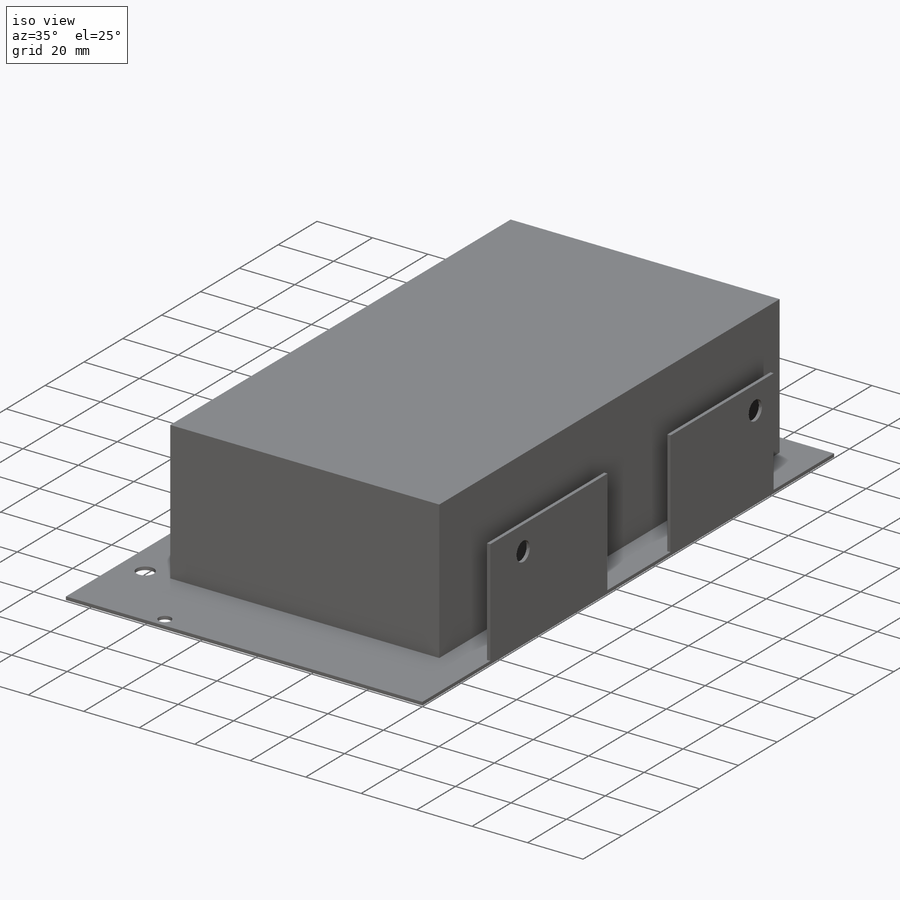
[diagram: iso view]
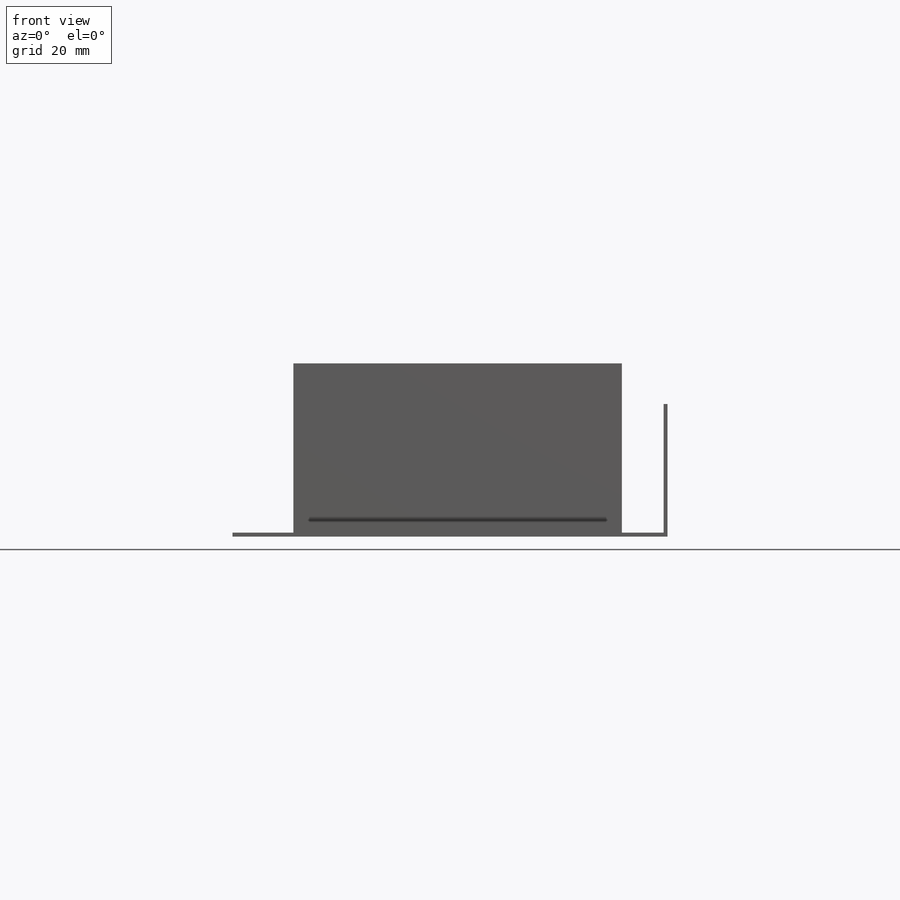
[diagram: front view]
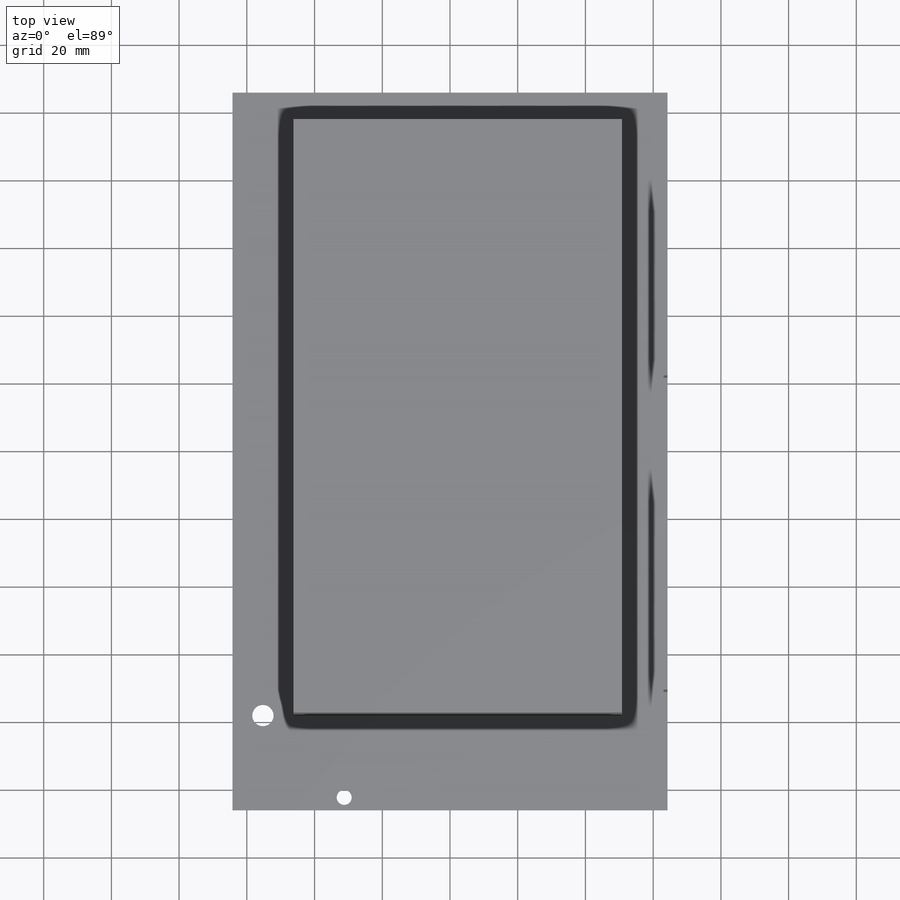
[diagram: top view]
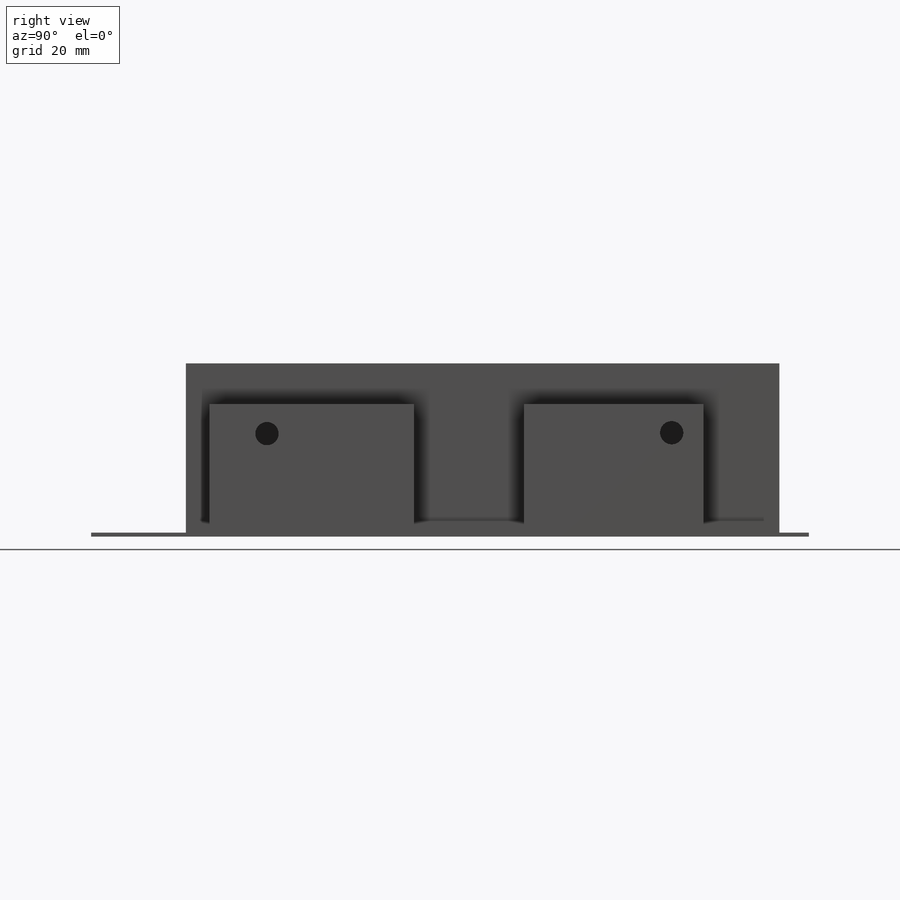
[diagram: right view]
SOLIDWORKS PART (.sldprt)
format: sldprt  version: not decoded by parser v0  size: 207,360 bytes
history: native  units: mm
features: sketch x4, extrude x3, material x1, cut_extrude x1 (+13 scaffold rows collapsed)
feature tree (22):
  scaffold x13  (default folders/planes/origin — collapsed)
  material  "Material <not specified>"
  sketch  "Sketch1"  dims[D3=6.3mm D7=4.43mm D1=128.5mm D2=212.0mm D4=9.0mm D5=28.0mm D6=3.815mm D8=33.0mm]
  extrude  "Base"  Depth=1.18mm
  sketch  "Sketch4"  dims[D1=9.0mm D2=97.0mm D3=175.26mm]
  extrude  "Capacitors"  Depth=50mm
  sketch  "Sketch2"  dims[D1=1.18mm D2=35.0mm D3=60.3mm D4=32.5mm D5=53.1mm]
  extrude  "Tabs"  Depth=38mm
  sketch  "Sketch3"  dims[c1.D3=6.88mm c1.D4=~18.001377mm c1.D6=6.9mm c1.D1=16.93mm c1.D2=8.8mm c2.D4=8.54mm c2.D5=9.44mm]
  cut_extrude  "Tab Holes"  [1 undecoded]
decode coverage: 7 of 8 modeling features carry decoded parameters
note: ~ marks probable driven/reference dimensions
note: 1 parameter value undecoded
note: suppression state not decoded; provenance and decode notes live in map.json
